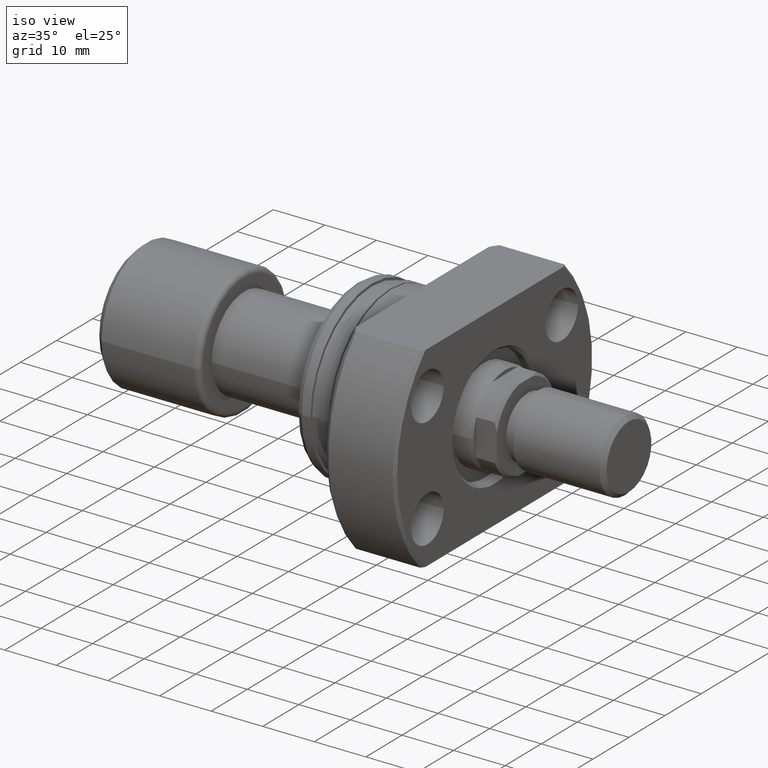
[diagram: clean part render]
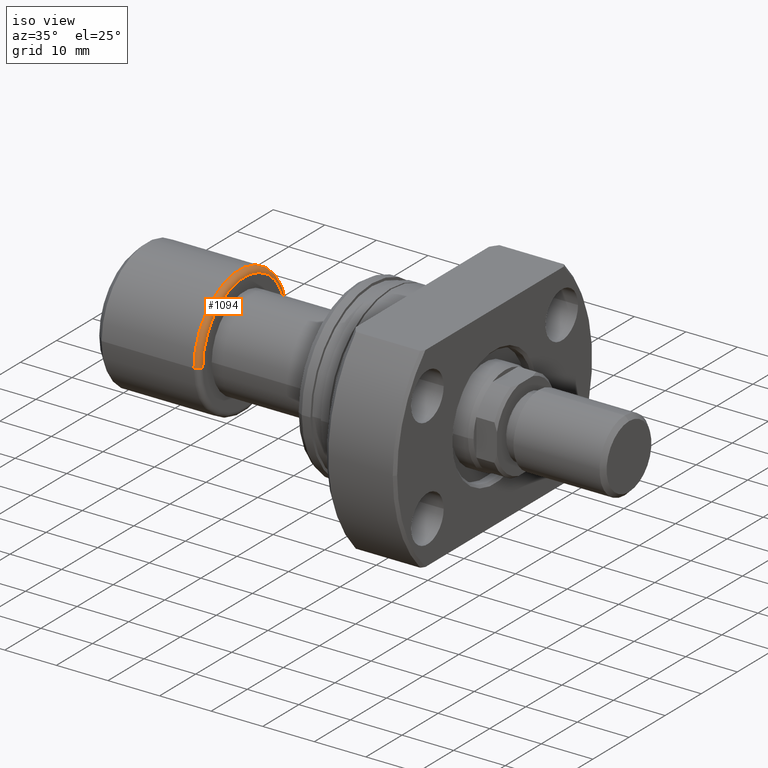
[diagram: same view with one face highlighted and labeled with its STEP entity id]
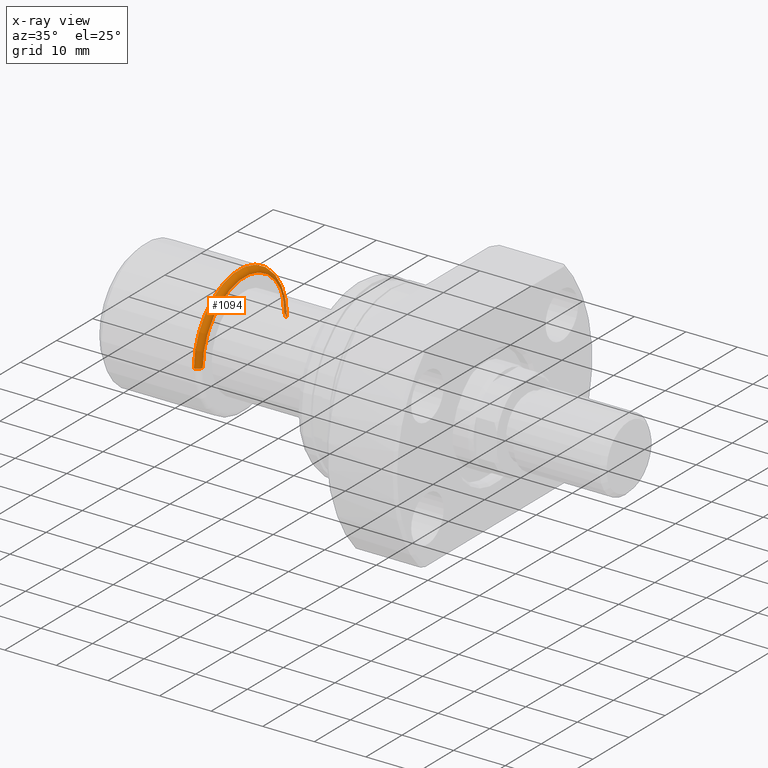
[diagram: x-ray of the same camera — body ghosted, the highlighted face saturated]
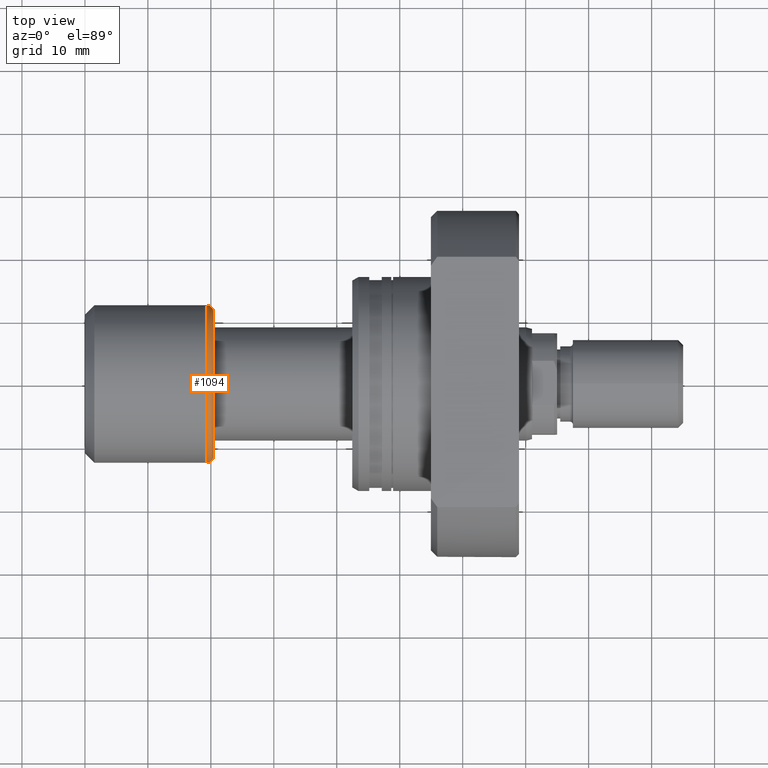
[diagram: same view with one face highlighted and labeled with its STEP entity id]
A machine part, iso view. The second image highlights one B-rep face of the part: STEP entity #1094.
The next image is the same camera in x-ray: the body ghosted, the highlighted face saturated — about 4% of this face is hidden behind the body in this view.
A second angle (top view) of the same face is appended — the face is thin or edge-on in the first view.
In plain terms, the highlighted toroidal blend (fillet) surface has major radius 11.5 mm and minor (blend) radius 1 mm.
Its self-contained STEP definition (entity closure, byte-faithful):
#27 = VERTEX_POINT ( 'NONE', #197 ) ;
#122 = CIRCLE ( 'NONE', #2216, 1.000000000000000888 ) ;
#197 = CARTESIAN_POINT ( 'NONE',  ( 19.40000000000000213, -12.50000000000000000, 0.000000000000000000 ) ) ;
#333 = DIRECTION ( 'NONE',  ( 1.069542322069065955E-17, -1.000000000000000000, 0.000000000000000000 ) ) ;
#377 = CARTESIAN_POINT ( 'NONE',  ( 19.39999999999999858, -11.50000000000000000, 0.000000000000000000 ) ) ;
#574 = VERTEX_POINT ( 'NONE', #1450 ) ;
#615 = FACE_OUTER_BOUND ( 'NONE', #2560, .T. ) ;
#704 = CIRCLE ( 'NONE', #2084, 12.50000000000000000 ) ;
#715 = CIRCLE ( 'NONE', #3632, 1.000000000000000888 ) ;
#814 = TOROIDAL_SURFACE ( 'NONE', #2316, 11.50000000000000000, 1.000000000000000888 ) ;
#909 = DIRECTION ( 'NONE',  ( 0.000000000000000000, -1.000000000000000000, -1.224646799147353454E-16 ) ) ;
#959 = CIRCLE ( 'NONE', #3032, 11.50000000000000000 ) ;
#966 = CARTESIAN_POINT ( 'NONE',  ( 19.40000000000000213, 12.50000000000000000, 1.530808498934191521E-15 ) ) ;
#1030 = ORIENTED_EDGE ( 'NONE', *, *, #2974, .T. ) ;
#1094 = ADVANCED_FACE ( 'NONE', ( #615 ), #814, .T. ) ;
#1198 = CARTESIAN_POINT ( 'NONE',  ( 19.39999999999999858, 0.000000000000000000, 0.000000000000000000 ) ) ;
#1217 = ORIENTED_EDGE ( 'NONE', *, *, #1544, .F. ) ;
#1221 = DIRECTION ( 'NONE',  ( -1.000000000000000000, -1.069542322069065801E-17, -0.000000000000000000 ) ) ;
#1288 = ORIENTED_EDGE ( 'NONE', *, *, #3675, .T. ) ;
#1450 = CARTESIAN_POINT ( 'NONE',  ( 20.39999999999999858, -11.50000000000000000, 0.000000000000000000 ) ) ;
#1519 = DIRECTION ( 'NONE',  ( 0.000000000000000000, 0.000000000000000000, -1.000000000000000000 ) ) ;
#1544 = EDGE_CURVE ( 'NONE', #27, #3440, #704, .T. ) ;
#1878 = ORIENTED_EDGE ( 'NONE', *, *, #2547, .F. ) ;
#2084 = AXIS2_PLACEMENT_3D ( 'NONE', #3497, #3224, #2941 ) ;
#2090 = DIRECTION ( 'NONE',  ( 1.309811581274509052E-33, -1.224646799147353207E-16, 1.000000000000000000 ) ) ;
#2216 = AXIS2_PLACEMENT_3D ( 'NONE', #377, #1519, #2657 ) ;
#2299 = CARTESIAN_POINT ( 'NONE',  ( 20.39999999999999858, 2.181866337020894116E-16, 0.000000000000000000 ) ) ;
#2316 = AXIS2_PLACEMENT_3D ( 'NONE', #1198, #2889, #333 ) ;
#2355 = CARTESIAN_POINT ( 'NONE',  ( 20.39999999999999858, 11.50000000000000000, 1.469576158976823947E-15 ) ) ;
#2427 = CARTESIAN_POINT ( 'NONE',  ( 19.39999999999999858, 11.50000000000000000, 1.408343819019456176E-15 ) ) ;
#2547 = EDGE_CURVE ( 'NONE', #574, #27, #122, .T. ) ;
#2560 = EDGE_LOOP ( 'NONE', ( #1288, #1030, #1217, #1878 ) ) ;
#2657 = DIRECTION ( 'NONE',  ( -1.000000000000000000, 0.000000000000000000, 0.000000000000000000 ) ) ;
#2889 = DIRECTION ( 'NONE',  ( -1.000000000000000000, -1.069542322069065801E-17, -0.000000000000000000 ) ) ;
#2941 = DIRECTION ( 'NONE',  ( 0.000000000000000000, -1.000000000000000000, 0.000000000000000000 ) ) ;
#2974 = EDGE_CURVE ( 'NONE', #3019, #3440, #715, .T. ) ;
#3019 = VERTEX_POINT ( 'NONE', #2355 ) ;
#3032 = AXIS2_PLACEMENT_3D ( 'NONE', #2299, #1221, #3417 ) ;
#3224 = DIRECTION ( 'NONE',  ( -1.000000000000000000, -1.069542322069065801E-17, -0.000000000000000000 ) ) ;
#3417 = DIRECTION ( 'NONE',  ( 0.000000000000000000, -1.000000000000000000, 0.000000000000000000 ) ) ;
#3440 = VERTEX_POINT ( 'NONE', #966 ) ;
#3497 = CARTESIAN_POINT ( 'NONE',  ( 19.40000000000000213, 2.074912104813987675E-16, 0.000000000000000000 ) ) ;
#3632 = AXIS2_PLACEMENT_3D ( 'NONE', #2427, #2090, #909 ) ;
#3675 = EDGE_CURVE ( 'NONE', #574, #3019, #959, .T. ) ;